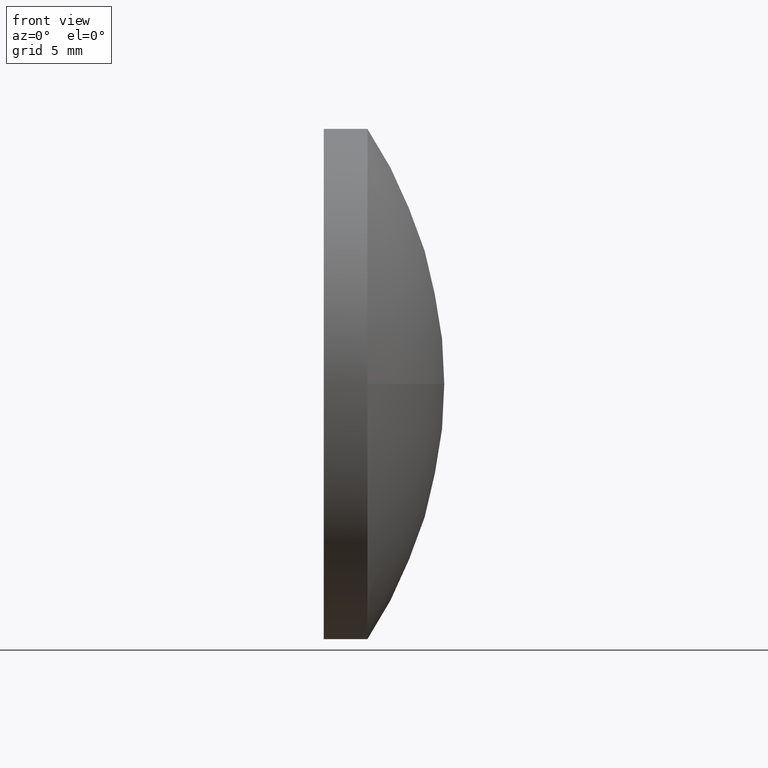
[diagram: clean part render]
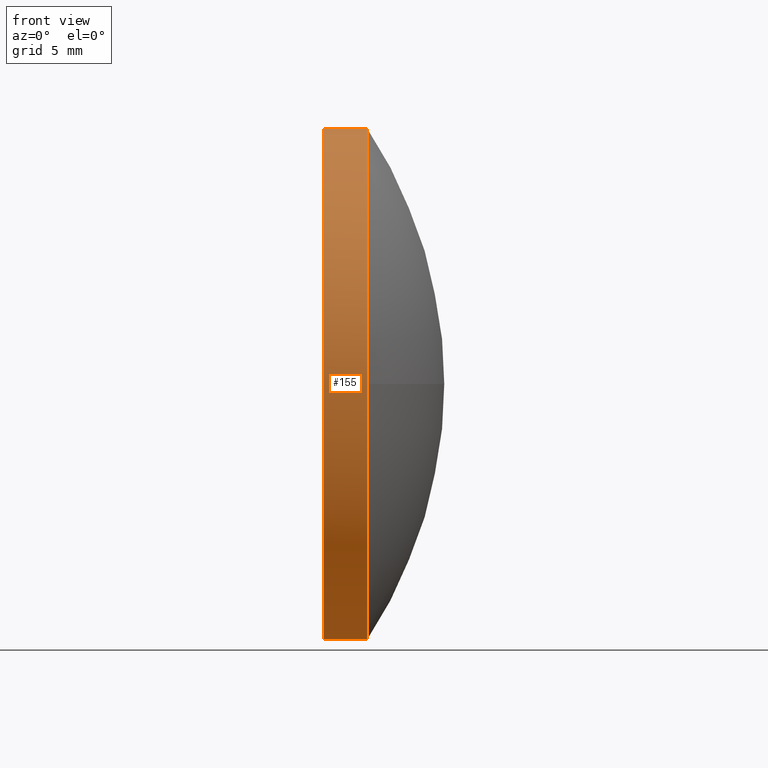
[diagram: same view with one face highlighted and labeled with its STEP entity id]
A machine part, front view. The second image highlights one B-rep face of the part: STEP entity #155.
In plain terms, the highlighted cylindrical surface (partial cylindrical patch) has radius 12.7 mm, axis along (1, -0, -0).
Its self-contained STEP definition (entity closure, byte-faithful):
#2 = VERTEX_POINT ( 'NONE', #70 ) ;
#11 = CARTESIAN_POINT ( 'NONE',  ( 117.9493723868566800, 65.23355492641219700, 0.0000000000000000000 ) ) ;
#14 = DIRECTION ( 'NONE',  ( 1.000000000000000000, -0.0000000000000000000, -0.0000000000000000000 ) ) ;
#27 = DIRECTION ( 'NONE',  ( 1.000000000000000000, -0.0000000000000000000, -0.0000000000000000000 ) ) ;
#33 = LINE ( 'NONE', #73, #109 ) ;
#34 = EDGE_CURVE ( 'NONE', #58, #169, #164, .T. ) ;
#36 = CARTESIAN_POINT ( 'NONE',  ( 115.7736064308381300, 65.23355492641219700, 0.0000000000000000000 ) ) ;
#39 = VERTEX_POINT ( 'NONE', #113 ) ;
#40 = CARTESIAN_POINT ( 'NONE',  ( 121.7736064308381300, 65.23355492641219700, 0.0000000000000000000 ) ) ;
#41 = DIRECTION ( 'NONE',  ( 0.0000000000000000000, 0.0000000000000000000, -1.000000000000000000 ) ) ;
#43 = ORIENTED_EDGE ( 'NONE', *, *, #142, .T. ) ;
#49 = EDGE_CURVE ( 'NONE', #39, #140, #125, .T. ) ;
#51 = DIRECTION ( 'NONE',  ( 0.0000000000000000000, 0.0000000000000000000, -1.000000000000000000 ) ) ;
#52 = CARTESIAN_POINT ( 'NONE',  ( 115.7736064308381300, 65.23355492641219700, 12.70000000000000300 ) ) ;
#55 = AXIS2_PLACEMENT_3D ( 'NONE', #36, #141, #51 ) ;
#58 = VERTEX_POINT ( 'NONE', #52 ) ;
#59 = CARTESIAN_POINT ( 'NONE',  ( 117.9493723868566800, 65.23355492641219700, -12.70000000000000300 ) ) ;
#66 = EDGE_CURVE ( 'NONE', #2, #39, #121, .T. ) ;
#70 = CARTESIAN_POINT ( 'NONE',  ( 117.9493723868566800, 65.23355492641219700, 12.70000000000000300 ) ) ;
#73 = CARTESIAN_POINT ( 'NONE',  ( 121.7736064308381300, 65.23355492641219700, -12.70000000000000300 ) ) ;
#74 = CARTESIAN_POINT ( 'NONE',  ( 115.7736064308381300, 65.23355492641219700, -12.70000000000000300 ) ) ;
#75 = AXIS2_PLACEMENT_3D ( 'NONE', #11, #27, #41 ) ;
#76 = DIRECTION ( 'NONE',  ( 1.000000000000000000, -0.0000000000000000000, -0.0000000000000000000 ) ) ;
#79 = AXIS2_PLACEMENT_3D ( 'NONE', #162, #118, #177 ) ;
#83 = CYLINDRICAL_SURFACE ( 'NONE', #157, 12.70000000000000300 ) ;
#92 = DIRECTION ( 'NONE',  ( 1.000000000000000000, -0.0000000000000000000, -0.0000000000000000000 ) ) ;
#94 = ORIENTED_EDGE ( 'NONE', *, *, #49, .F. ) ;
#99 = ORIENTED_EDGE ( 'NONE', *, *, #34, .T. ) ;
#109 = VECTOR ( 'NONE', #92, 1000.000000000000000 ) ;
#113 = CARTESIAN_POINT ( 'NONE',  ( 117.9493723868566800, 52.53355492641219400, 0.0000000000000000000 ) ) ;
#116 = CARTESIAN_POINT ( 'NONE',  ( 121.7736064308381300, 65.23355492641219700, 12.70000000000000300 ) ) ;
#118 = DIRECTION ( 'NONE',  ( 1.000000000000000000, -0.0000000000000000000, -0.0000000000000000000 ) ) ;
#121 = CIRCLE ( 'NONE', #79, 12.70000000000000300 ) ;
#123 = ORIENTED_EDGE ( 'NONE', *, *, #170, .F. ) ;
#125 = CIRCLE ( 'NONE', #75, 12.70000000000000300 ) ;
#127 = ORIENTED_EDGE ( 'NONE', *, *, #66, .F. ) ;
#139 = VECTOR ( 'NONE', #76, 1000.000000000000000 ) ;
#140 = VERTEX_POINT ( 'NONE', #59 ) ;
#141 = DIRECTION ( 'NONE',  ( 1.000000000000000000, -0.0000000000000000000, -0.0000000000000000000 ) ) ;
#142 = EDGE_CURVE ( 'NONE', #169, #140, #33, .T. ) ;
#144 = LINE ( 'NONE', #116, #139 ) ;
#155 = ADVANCED_FACE ( 'NONE', ( #176 ), #83, .T. ) ;
#157 = AXIS2_PLACEMENT_3D ( 'NONE', #40, #14, #159 ) ;
#159 = DIRECTION ( 'NONE',  ( 0.0000000000000000000, 0.0000000000000000000, -1.000000000000000000 ) ) ;
#162 = CARTESIAN_POINT ( 'NONE',  ( 117.9493723868566800, 65.23355492641219700, 0.0000000000000000000 ) ) ;
#164 = CIRCLE ( 'NONE', #55, 12.70000000000000300 ) ;
#169 = VERTEX_POINT ( 'NONE', #74 ) ;
#170 = EDGE_CURVE ( 'NONE', #58, #2, #144, .T. ) ;
#176 = FACE_OUTER_BOUND ( 'NONE', #182, .T. ) ;
#177 = DIRECTION ( 'NONE',  ( 0.0000000000000000000, 0.0000000000000000000, -1.000000000000000000 ) ) ;
#182 = EDGE_LOOP ( 'NONE', ( #123, #99, #43, #94, #127 ) ) ;